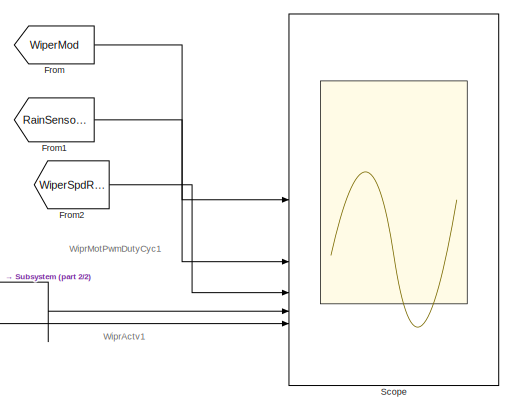
[diagram: root canvas - part 1/2, right side, full height]
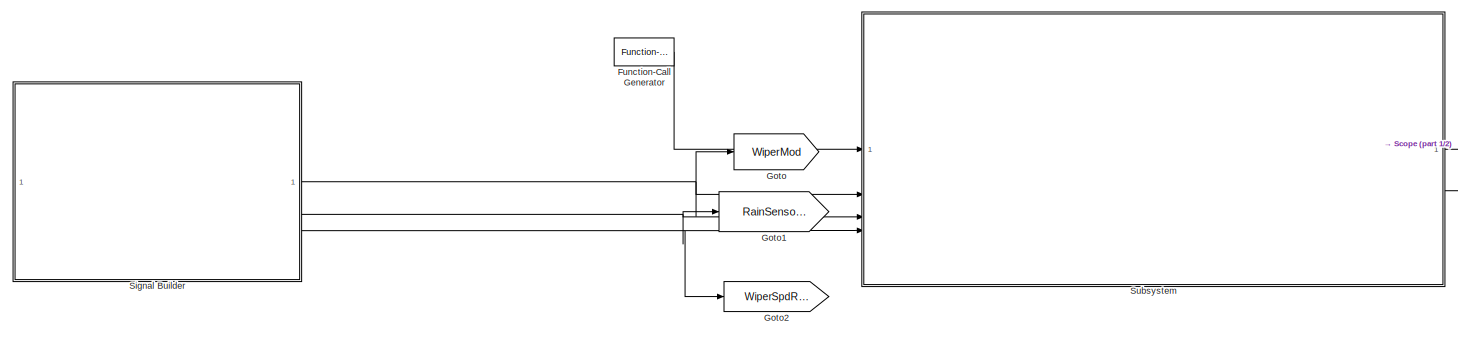
[diagram: root canvas - part 2/2, full width, middle band]
MODEL slx_a1ec48ea94ae
KIND model
CONFIG AbsTol = auto
CONFIG EnableMultiTasking = off
CONFIG FixedStep = 0.01
CONFIG MaxStep = auto
CONFIG MinStep = auto
CONFIG RelTol = 1e-3
CONFIG SampleTimeConstraint = Unconstrained
CONFIG SolverName = FixedStepDiscrete
CONFIG StartTime = 0.0
CONFIG StopTime = 20.0
BLOCK [From] From
  GotoTag = WiperMod
BLOCK [From] From1
  GotoTag = RainSensorErr
BLOCK [From] From2
  GotoTag = WiperSpdReq
BLOCK [Reference] Function-Call Generator  REF=simulink/Ports &
Subsystems/Function-Call
Generator
  SourceBlock = simulink/Ports &\nSubsystems/Function-Call\nGenerator
  SourceType = Function-Call Generator
BLOCK [Goto] Goto
  GotoTag = WiperMod
BLOCK [Goto] Goto1
  GotoTag = RainSensorErr
BLOCK [Goto] Goto2
  GotoTag = WiperSpdReq
BLOCK [Scope] Scope
  Floating = off
  NumInputPorts = 5
  ScopeSpecificationString = Simulink.scopes.TimeScopeBlockCfg('CurrentConfiguration', extmgr.ConfigurationSet(extmgr.Configuration('Core','General UI',true),extmgr.Configuration('Core','Source UI',true),extmgr.Configuration('Sources','WiredSimulink',true),extmgr.Configuration('Visuals','Time Domain',true,'SerializedDisplays',{struct('MinYLimReal','-0.3975','MaxYLimReal','3.3775','YLabelReal','','MinYLimMag','0.00000','MaxYLi...<+6128ch>
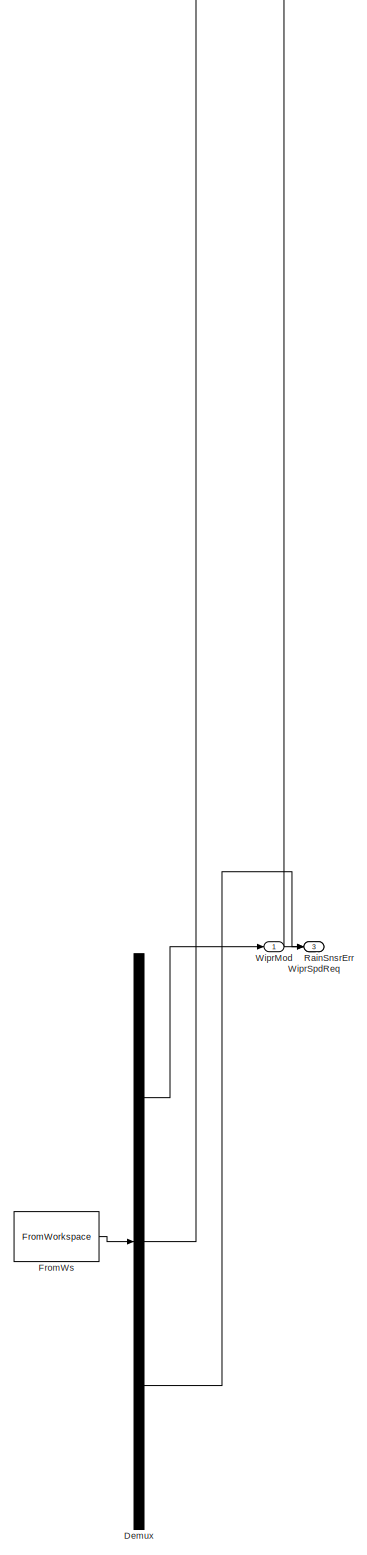
[diagram: Signal Builder - part 1/1, full width, bottom band]
BLOCK [SubSystem] Signal Builder
  ClipboardFcn = sigbuilder_block('clipboard');
  CloseFcn = sigbuilder_block('close');
  ContinueFcn = sigbuilder_block('continue');
  CopyFcn = sigbuilder_block('copy');
  DeleteFcn = sigbuilder_block('delete');
  LoadFcn = sigbuilder_block('load');
  MaskHideContents = on
  ModelCloseFcn = sigbuilder_block('modelClose');
  NameChangeFcn = sigbuilder_block('namechange');
  OpenFcn = sigbuilder_block('open',[813.75 201 550.5 399.75 ]);
  PauseFcn = sigbuilder_block('pause');
  PreSaveFcn = sigbuilder_block('preSave');
  StartFcn = sigbuilder_block('start');
  StopFcn = sigbuilder_block('stop');
  Tag = STV Subsys
BLOCK [Demux] Signal Builder/Demux
  DisplayOption = none
  Outputs = 3
  Tag = STV Demux
BLOCK [FromWorkspace] Signal Builder/FromWs
  Tag = STV FromWs
  VariableName = tuvar
BLOCK [Outport] Signal Builder/RainSnsrErr
  Port = 2
  Tag = STV Outport
BLOCK [Outport] Signal Builder/WiprMod
  Tag = STV Outport
BLOCK [Outport] Signal Builder/WiprSpdReq
  Port = 3
  Tag = STV Outport
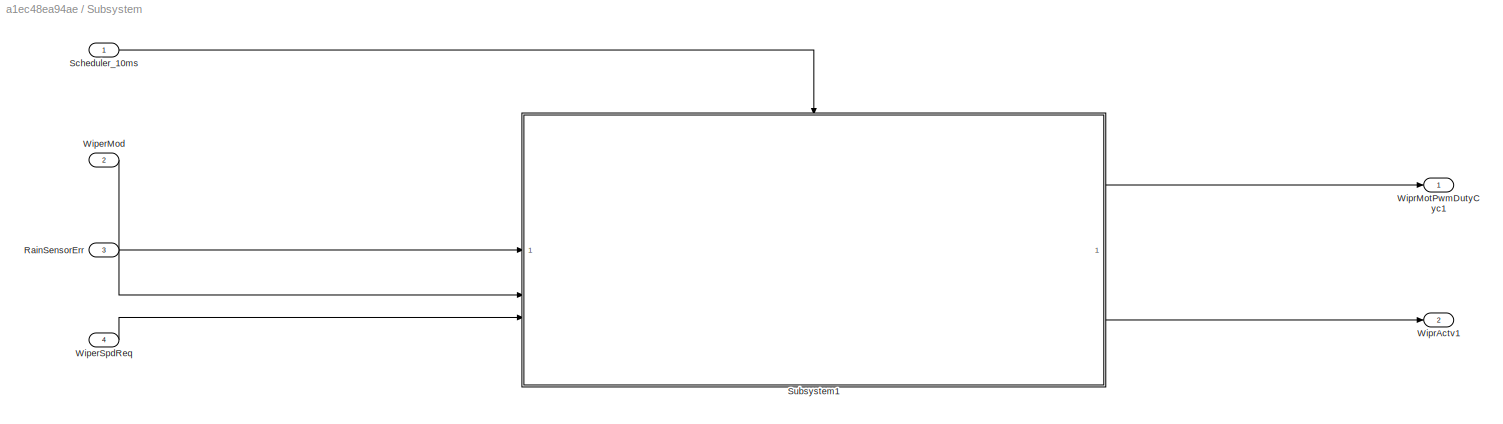
BLOCK [SubSystem] Subsystem
BLOCK [Inport] Subsystem/RainSensorErr
  Port = 3
BLOCK [Inport] Subsystem/Scheduler_10ms
  OutputFunctionCall = on
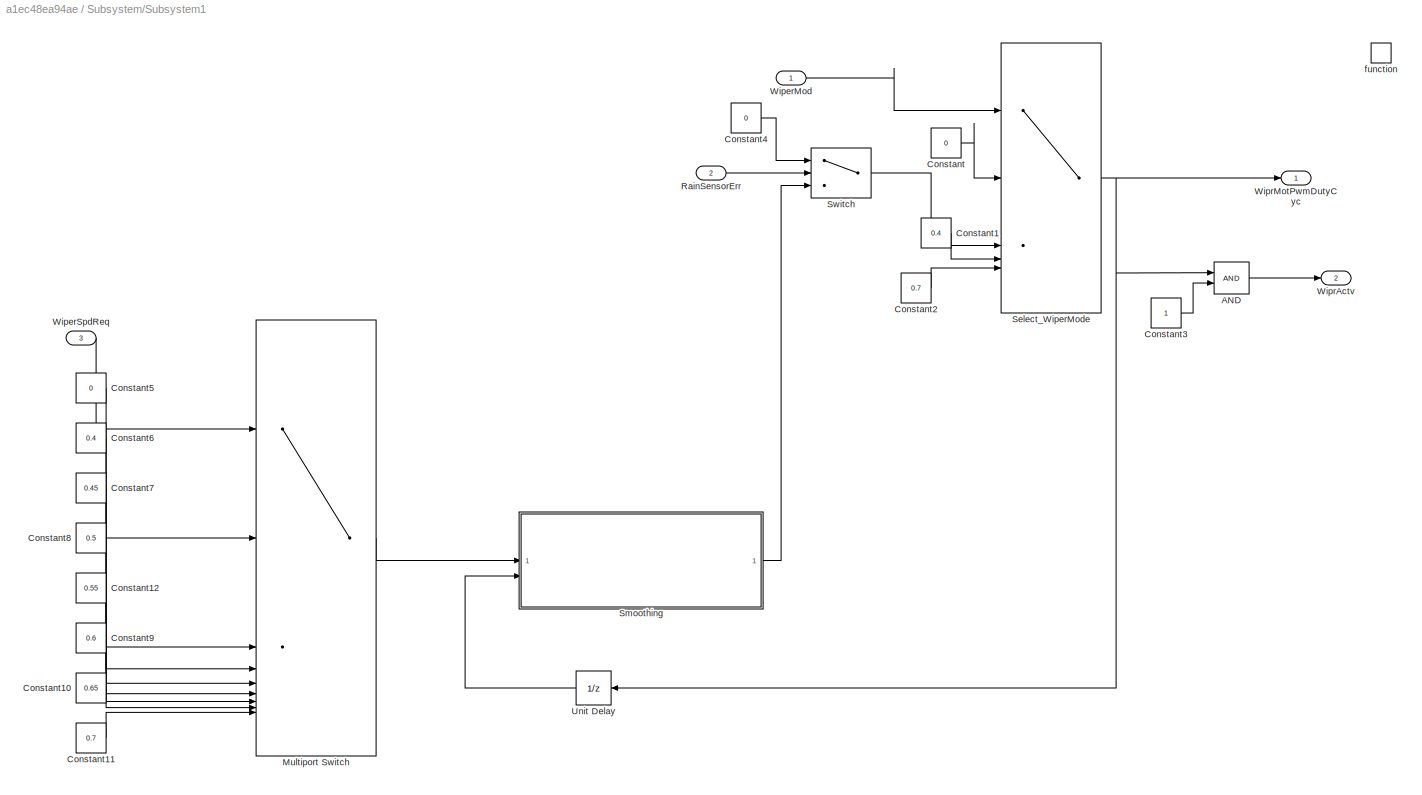
BLOCK [SubSystem] Subsystem/Subsystem1
BLOCK [Logic] Subsystem/Subsystem1/AND
  AllPortsSameDT = off
  IconShape = distinctive
  OutDataTypeStr = boolean
BLOCK [Constant] Subsystem/Subsystem1/Constant
  Value = 0
BLOCK [Constant] Subsystem/Subsystem1/Constant1
  Value = 0.4
BLOCK [Constant] Subsystem/Subsystem1/Constant10
  Value = 0.65
BLOCK [Constant] Subsystem/Subsystem1/Constant11
  Value = 0.7
BLOCK [Constant] Subsystem/Subsystem1/Constant12
  Value = 0.55
BLOCK [Constant] Subsystem/Subsystem1/Constant2
  Value = 0.7
BLOCK [Constant] Subsystem/Subsystem1/Constant3
BLOCK [Constant] Subsystem/Subsystem1/Constant4
  Value = 0
BLOCK [Constant] Subsystem/Subsystem1/Constant5
  Value = 0
BLOCK [Constant] Subsystem/Subsystem1/Constant6
  Value = 0.4
BLOCK [Constant] Subsystem/Subsystem1/Constant7
  Value = 0.45
BLOCK [Constant] Subsystem/Subsystem1/Constant8
  Value = 0.5
BLOCK [Constant] Subsystem/Subsystem1/Constant9
  Value = 0.6
BLOCK [MultiPortSwitch] Subsystem/Subsystem1/Multiport Switch
  DataPortOrder = Zero-based contiguous
  InputSameDT = off
  Inputs = 8
  SaturateOnIntegerOverflow = off
  zeroidx = on
BLOCK [Inport] Subsystem/Subsystem1/RainSensorErr
  Port = 2
BLOCK [MultiPortSwitch] Subsystem/Subsystem1/Select_WiperMode
  DataPortOrder = Zero-based contiguous
  InputSameDT = off
  Inputs = 4
  SaturateOnIntegerOverflow = off
  zeroidx = on
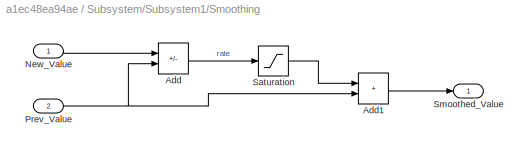
BLOCK [SubSystem] Subsystem/Subsystem1/Smoothing
BLOCK [Sum] Subsystem/Subsystem1/Smoothing/Add
  IconShape = rectangular
  Inputs = +-
BLOCK [Sum] Subsystem/Subsystem1/Smoothing/Add1
  IconShape = rectangular
BLOCK [Inport] Subsystem/Subsystem1/Smoothing/New_Value
BLOCK [Inport] Subsystem/Subsystem1/Smoothing/Prev_Value
  Port = 2
BLOCK [Saturate] Subsystem/Subsystem1/Smoothing/Saturation
  LowerLimit = -0.005
  UpperLimit = 0.005
BLOCK [Outport] Subsystem/Subsystem1/Smoothing/Smoothed_Value
BLOCK [Switch] Subsystem/Subsystem1/Switch
  Criteria = u2 > Threshold
  InputSameDT = off
  OutDataTypeStr = boolean
  SaturateOnIntegerOverflow = off
BLOCK [UnitDelay] Subsystem/Subsystem1/Unit Delay
  HasFrameUpgradeWarning = on
  SampleTime = -1
BLOCK [Inport] Subsystem/Subsystem1/WiperMod
BLOCK [Inport] Subsystem/Subsystem1/WiperSpdReq
  Port = 3
BLOCK [Outport] Subsystem/Subsystem1/WiprActv
  Port = 2
BLOCK [Outport] Subsystem/Subsystem1/WiprMotPwmDutyCyc
BLOCK [TriggerPort] Subsystem/Subsystem1/function
  StatesWhenEnabling = held
  TriggerType = function-call
  VariantControl = (inherit)
BLOCK [Inport] Subsystem/WiperMod
  Port = 2
BLOCK [Inport] Subsystem/WiperSpdReq
  Port = 4
BLOCK [Outport] Subsystem/WiprActv1
  Port = 2
BLOCK [Outport] Subsystem/WiprMotPwmDutyCyc1
ANNOTATION (root): WiprActv1
ANNOTATION (root): WiprMotPwmDutyCyc1
LINE From1:1 -> Scope:2
LINE From2:1 -> Scope:3
LINE From:1 -> Scope:1
LINE Function-Call Generator:1 -> Subsystem:1
NET Signal Builder:1 -> Goto:1, Subsystem:2
NET Signal Builder:2 -> Goto1:1, Subsystem:3
NET Signal Builder:3 -> Goto2:1, Subsystem:4
LINE Subsystem/RainSensorErr:1 -> Subsystem/Subsystem1:2
LINE Subsystem/Scheduler_10ms:1 -> Subsystem/Subsystem1:trigger
LINE Subsystem/Subsystem1/AND:1 -> Subsystem/Subsystem1/WiprActv:1
LINE Subsystem/Subsystem1/Constant10:1 -> Subsystem/Subsystem1/Multiport Switch:8
LINE Subsystem/Subsystem1/Constant11:1 -> Subsystem/Subsystem1/Multiport Switch:9
LINE Subsystem/Subsystem1/Constant12:1 -> Subsystem/Subsystem1/Multiport Switch:6
LINE Subsystem/Subsystem1/Constant1:1 -> Subsystem/Subsystem1/Select_WiperMode:4
LINE Subsystem/Subsystem1/Constant2:1 -> Subsystem/Subsystem1/Select_WiperMode:5
LINE Subsystem/Subsystem1/Constant3:1 -> Subsystem/Subsystem1/AND:2
LINE Subsystem/Subsystem1/Constant4:1 -> Subsystem/Subsystem1/Switch:1
LINE Subsystem/Subsystem1/Constant5:1 -> Subsystem/Subsystem1/Multiport Switch:2
LINE Subsystem/Subsystem1/Constant6:1 -> Subsystem/Subsystem1/Multiport Switch:3
LINE Subsystem/Subsystem1/Constant7:1 -> Subsystem/Subsystem1/Multiport Switch:4
LINE Subsystem/Subsystem1/Constant8:1 -> Subsystem/Subsystem1/Multiport Switch:5
LINE Subsystem/Subsystem1/Constant9:1 -> Subsystem/Subsystem1/Multiport Switch:7
LINE Subsystem/Subsystem1/Constant:1 -> Subsystem/Subsystem1/Select_WiperMode:2
LINE Subsystem/Subsystem1/Multiport Switch:1 -> Subsystem/Subsystem1/Smoothing:1
LINE Subsystem/Subsystem1/RainSensorErr:1 -> Subsystem/Subsystem1/Switch:2
NET Subsystem/Subsystem1/Select_WiperMode:1 -> Subsystem/Subsystem1/AND:1, Subsystem/Subsystem1/Unit Delay:1, Subsystem/Subsystem1/WiprMotPwmDutyCyc:1
LINE Subsystem/Subsystem1/Smoothing/Add1:1 -> Subsystem/Subsystem1/Smoothing/Smoothed_Value:1
LINE Subsystem/Subsystem1/Smoothing/Add:1 -> Subsystem/Subsystem1/Smoothing/Saturation:1
LINE Subsystem/Subsystem1/Smoothing/New_Value:1 -> Subsystem/Subsystem1/Smoothing/Add:1
NET Subsystem/Subsystem1/Smoothing/Prev_Value:1 -> Subsystem/Subsystem1/Smoothing/Add1:2, Subsystem/Subsystem1/Smoothing/Add:2
LINE Subsystem/Subsystem1/Smoothing/Saturation:1 -> Subsystem/Subsystem1/Smoothing/Add1:1
LINE Subsystem/Subsystem1/Smoothing:1 -> Subsystem/Subsystem1/Switch:3
LINE Subsystem/Subsystem1/Switch:1 -> Subsystem/Subsystem1/Select_WiperMode:3
LINE Subsystem/Subsystem1/Unit Delay:1 -> Subsystem/Subsystem1/Smoothing:2
LINE Subsystem/Subsystem1/WiperMod:1 -> Subsystem/Subsystem1/Select_WiperMode:1
LINE Subsystem/Subsystem1/WiperSpdReq:1 -> Subsystem/Subsystem1/Multiport Switch:1
LINE Subsystem/Subsystem1:1 -> Subsystem/WiprMotPwmDutyCyc1:1
LINE Subsystem/Subsystem1:2 -> Subsystem/WiprActv1:1
LINE Subsystem/WiperMod:1 -> Subsystem/Subsystem1:1
LINE Subsystem/WiperSpdReq:1 -> Subsystem/Subsystem1:3
LINE Subsystem:1 -> Scope:4
LINE Subsystem:2 -> Scope:5
note: NET lines group one-source signal fan-out (src -> all destinations, sorted); 1:1 wires keep LINE
